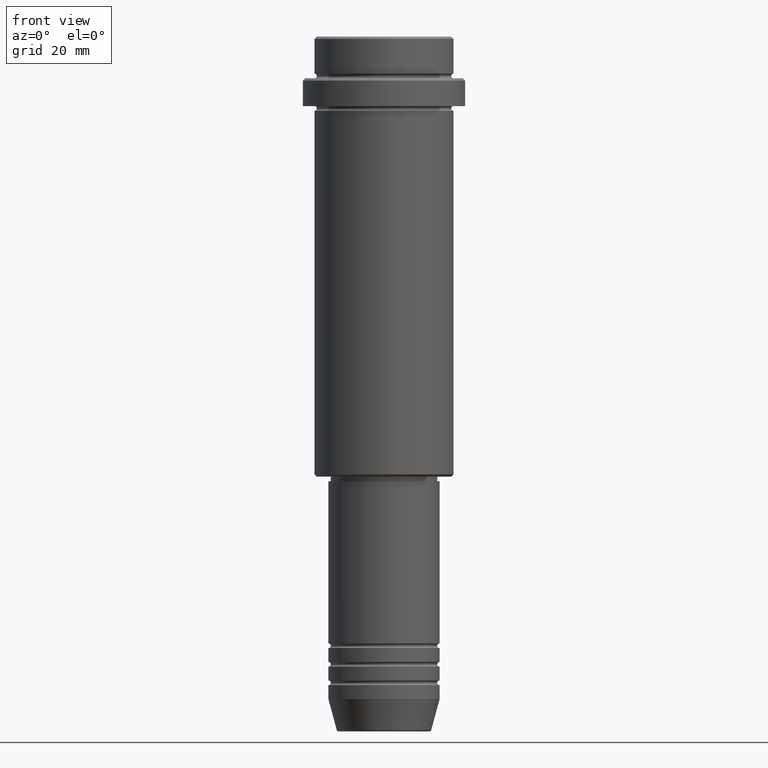
[diagram: clean part render]
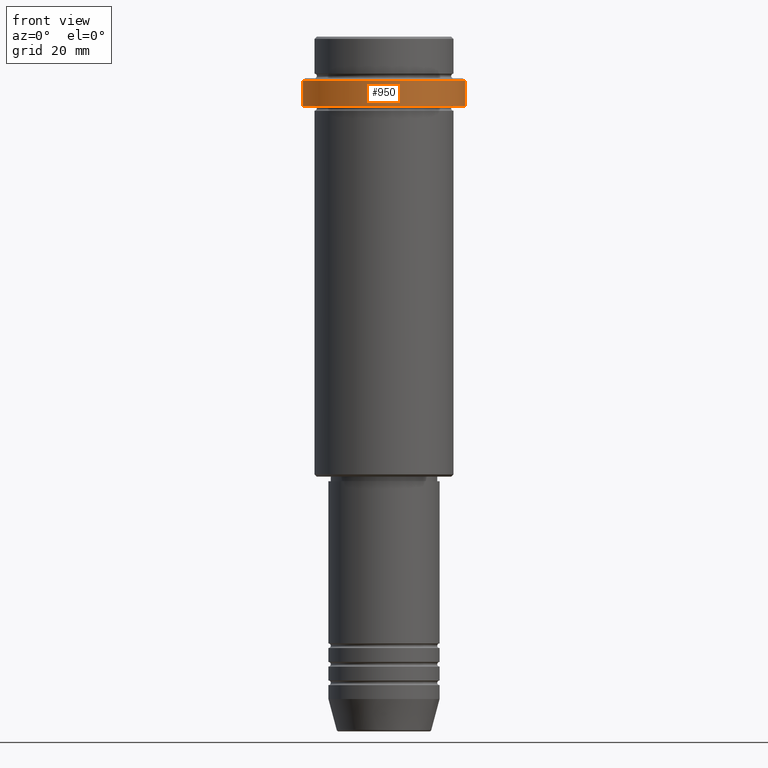
[diagram: same view with one face highlighted and labeled with its STEP entity id]
A machine part, front view. The second image highlights one B-rep face of the part: STEP entity #950.
In plain terms, the highlighted cylindrical surface (partial cylindrical patch) has radius 17.5 mm, axis along (-0, -0, 1).
Its self-contained STEP definition (entity closure, byte-faithful):
#16 = CARTESIAN_POINT ( 'NONE',  ( 17.50000000000000000, 0.000000000000000000, 0.000000000000000000 ) ) ;
#19 = ORIENTED_EDGE ( 'NONE', *, *, #507, .T. ) ;
#110 = DIRECTION ( 'NONE',  ( 0.000000000000000000, 0.000000000000000000, -1.000000000000000000 ) ) ;
#221 = VECTOR ( 'NONE', #615, 1000.000000000000000 ) ;
#224 = LINE ( 'NONE', #16, #221 ) ;
#292 = CIRCLE ( 'NONE', #1345, 17.50000000000000000 ) ;
#347 = VERTEX_POINT ( 'NONE', #705 ) ;
#422 = VERTEX_POINT ( 'NONE', #744 ) ;
#435 = ORIENTED_EDGE ( 'NONE', *, *, #487, .F. ) ;
#466 = VECTOR ( 'NONE', #1040, 1000.000000000000000 ) ;
#487 = EDGE_CURVE ( 'NONE', #1039, #1245, #1396, .T. ) ;
#507 = EDGE_CURVE ( 'NONE', #347, #422, #224, .T. ) ;
#615 = DIRECTION ( 'NONE',  ( -0.000000000000000000, -0.000000000000000000, 1.000000000000000000 ) ) ;
#686 = ORIENTED_EDGE ( 'NONE', *, *, #1221, .T. ) ;
#705 = CARTESIAN_POINT ( 'NONE',  ( 17.50000000000000000, 0.000000000000000000, -15.00000000000000000 ) ) ;
#744 = CARTESIAN_POINT ( 'NONE',  ( 17.50000000000000000, 0.000000000000000000, -9.500000000000014211 ) ) ;
#770 = CARTESIAN_POINT ( 'NONE',  ( 0.000000000000000000, 0.000000000000000000, -9.500000000000014211 ) ) ;
#783 = ORIENTED_EDGE ( 'NONE', *, *, #965, .T. ) ;
#838 = EDGE_LOOP ( 'NONE', ( #435, #686, #19, #783 ) ) ;
#875 = FACE_OUTER_BOUND ( 'NONE', #838, .T. ) ;
#921 = DIRECTION ( 'NONE',  ( 1.000000000000000000, 0.000000000000000000, 0.000000000000000000 ) ) ;
#940 = CARTESIAN_POINT ( 'NONE',  ( 0.000000000000000000, 0.000000000000000000, -15.00000000000000000 ) ) ;
#950 = ADVANCED_FACE ( 'NONE', ( #875 ), #976, .T. ) ;
#956 = AXIS2_PLACEMENT_3D ( 'NONE', #940, #1352, #921 ) ;
#957 = DIRECTION ( 'NONE',  ( -0.000000000000000000, -0.000000000000000000, 1.000000000000000000 ) ) ;
#965 = EDGE_CURVE ( 'NONE', #422, #1245, #292, .T. ) ;
#976 = CYLINDRICAL_SURFACE ( 'NONE', #1042, 17.50000000000000000 ) ;
#1039 = VERTEX_POINT ( 'NONE', #1066 ) ;
#1040 = DIRECTION ( 'NONE',  ( -0.000000000000000000, -0.000000000000000000, 1.000000000000000000 ) ) ;
#1042 = AXIS2_PLACEMENT_3D ( 'NONE', #1075, #957, #1416 ) ;
#1066 = CARTESIAN_POINT ( 'NONE',  ( -17.50000000000000000, 2.143131898507868248E-15, -15.00000000000000000 ) ) ;
#1075 = CARTESIAN_POINT ( 'NONE',  ( 0.000000000000000000, 0.000000000000000000, 0.000000000000000000 ) ) ;
#1174 = DIRECTION ( 'NONE',  ( 1.000000000000000000, 0.000000000000000000, 0.000000000000000000 ) ) ;
#1221 = EDGE_CURVE ( 'NONE', #1039, #347, #1415, .T. ) ;
#1245 = VERTEX_POINT ( 'NONE', #1374 ) ;
#1279 = CARTESIAN_POINT ( 'NONE',  ( -17.50000000000000000, 2.143131898507868248E-15, 0.000000000000000000 ) ) ;
#1345 = AXIS2_PLACEMENT_3D ( 'NONE', #770, #110, #1174 ) ;
#1352 = DIRECTION ( 'NONE',  ( -0.000000000000000000, -0.000000000000000000, 1.000000000000000000 ) ) ;
#1374 = CARTESIAN_POINT ( 'NONE',  ( -17.50000000000000000, 2.143131898507868248E-15, -9.500000000000014211 ) ) ;
#1396 = LINE ( 'NONE', #1279, #466 ) ;
#1415 = CIRCLE ( 'NONE', #956, 17.50000000000000000 ) ;
#1416 = DIRECTION ( 'NONE',  ( 1.000000000000000000, 0.000000000000000000, 0.000000000000000000 ) ) ;